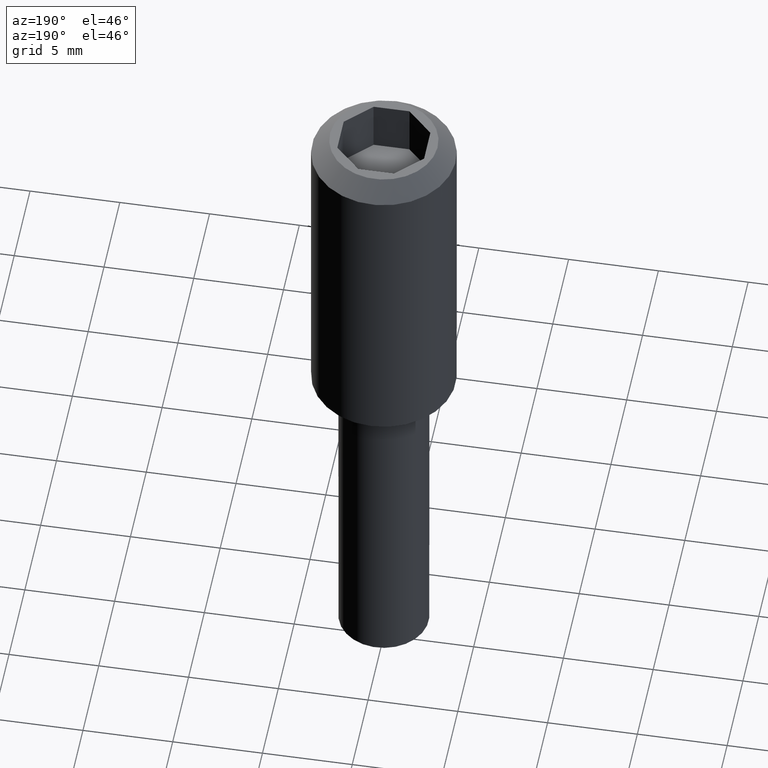
[diagram: clean part render]
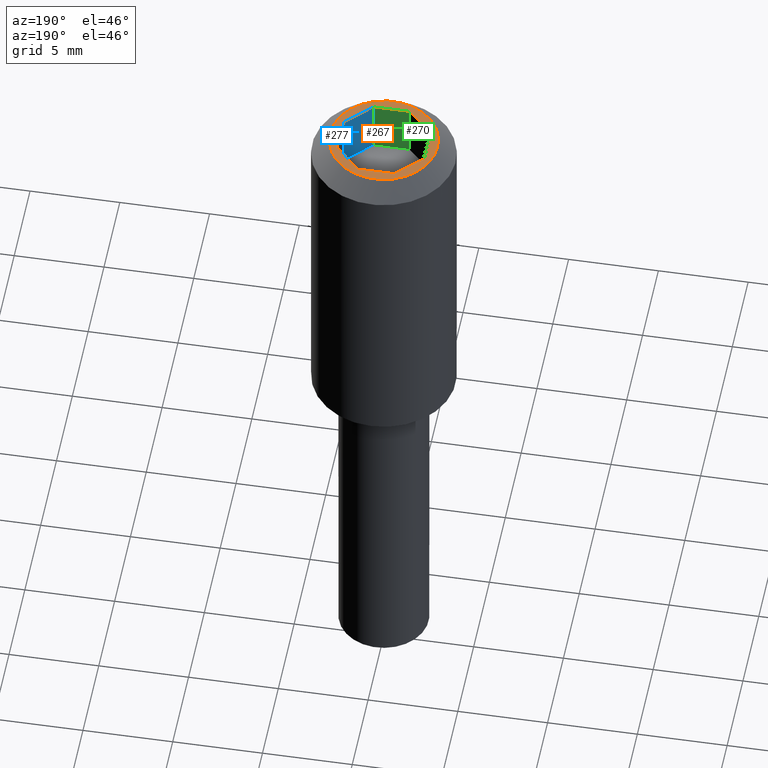
[diagram: same view with three faces highlighted in distinct colors, each labeled with its STEP entity id]
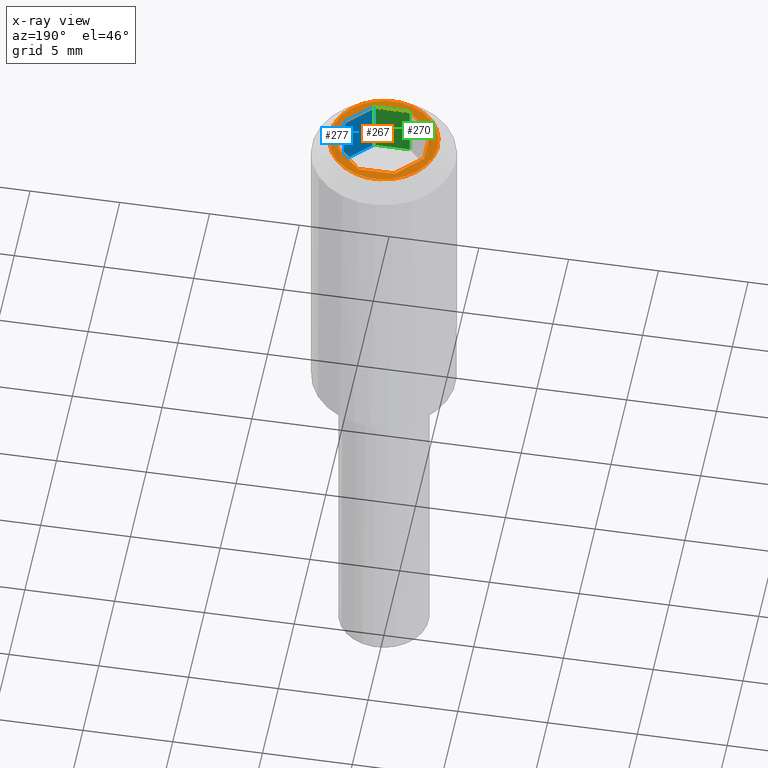
[diagram: x-ray of the same camera — body ghosted, the three highlighted faces saturated]
A machine part, auxiliary view with three faces highlighted in distinct colors.
The next image is the same camera in x-ray (body ghosted, the three faces saturated) — at least one of them is partly hidden behind the body in this view.
Their STEP definitions:

[orange] entity #267 — the highlighted planar face has unit normal (0, 0, 1).
#15=FACE_BOUND('',#52,.T.);
#17=PLANE('',#314);
#35=FACE_OUTER_BOUND('',#51,.T.);
#51=EDGE_LOOP('',(#209));
#52=EDGE_LOOP('',(#210,#211,#212,#213,#214,#215,#216,#217));
#69=LINE('',#432,#97);
#70=LINE('',#434,#98);
#71=LINE('',#436,#99);
#72=LINE('',#438,#100);
#73=LINE('',#440,#101);
#74=LINE('',#442,#102);
#75=LINE('',#444,#103);
#76=LINE('',#445,#104);
#97=VECTOR('',#358,2.);
#98=VECTOR('',#359,2.);
#99=VECTOR('',#360,2.00000000000001);
#100=VECTOR('',#361,2.);
#101=VECTOR('',#362,2.00000000000001);
#102=VECTOR('',#363,2.);
#103=VECTOR('',#364,2.00000000000001);
#104=VECTOR('',#365,2.);
#124=CIRCLE('',#307,3.);
#132=VERTEX_POINT('',#414);
#137=VERTEX_POINT('',#430);
#138=VERTEX_POINT('',#431);
#139=VERTEX_POINT('',#433);
#140=VERTEX_POINT('',#435);
#141=VERTEX_POINT('',#437);
#142=VERTEX_POINT('',#439);
#143=VERTEX_POINT('',#441);
#144=VERTEX_POINT('',#443);
#157=EDGE_CURVE('',#132,#132,#124,.T.);
#165=EDGE_CURVE('',#137,#138,#69,.T.);
#166=EDGE_CURVE('',#138,#139,#70,.T.);
#167=EDGE_CURVE('',#139,#140,#71,.T.);
#168=EDGE_CURVE('',#140,#141,#72,.T.);
#169=EDGE_CURVE('',#141,#142,#73,.T.);
#170=EDGE_CURVE('',#142,#143,#74,.T.);
#171=EDGE_CURVE('',#143,#144,#75,.T.);
#172=EDGE_CURVE('',#144,#137,#76,.T.);
#209=ORIENTED_EDGE('',*,*,#157,.T.);
#210=ORIENTED_EDGE('',*,*,#165,.T.);
#211=ORIENTED_EDGE('',*,*,#166,.T.);
#212=ORIENTED_EDGE('',*,*,#167,.T.);
#213=ORIENTED_EDGE('',*,*,#168,.T.);
#214=ORIENTED_EDGE('',*,*,#169,.T.);
#215=ORIENTED_EDGE('',*,*,#170,.T.);
#216=ORIENTED_EDGE('',*,*,#171,.T.);
#217=ORIENTED_EDGE('',*,*,#172,.T.);
#267=ADVANCED_FACE('',(#35,#15),#17,.T.);
#307=AXIS2_PLACEMENT_3D('',#415,#339,#340);
#314=AXIS2_PLACEMENT_3D('',#429,#356,#357);
#339=DIRECTION('center_axis',(0.,0.,1.));
#340=DIRECTION('ref_axis',(-1.,0.,0.));
#356=DIRECTION('center_axis',(0.,0.,1.));
#357=DIRECTION('ref_axis',(1.,0.,0.));
#358=DIRECTION('',(-0.707106781186548,-0.707106781186547,0.));
#359=DIRECTION('',(-1.,0.,0.));
#360=DIRECTION('',(-0.707106781186547,0.707106781186548,0.));
#361=DIRECTION('',(0.,1.,0.));
#362=DIRECTION('',(0.707106781186548,0.707106781186547,0.));
#363=DIRECTION('',(1.,0.,0.));
#364=DIRECTION('',(0.707106781186547,-0.707106781186548,0.));
#365=DIRECTION('',(0.,-1.,0.));
#414=CARTESIAN_POINT('',(-1.74332574334476,-2.44147810815323,18.5));
#415=CARTESIAN_POINT('Origin',(0.,2.265597E-15,18.5));
#429=CARTESIAN_POINT('Origin',(3.3,3.30000000000001,18.5));
#430=CARTESIAN_POINT('',(2.41421356237311,-0.999999999999998,18.5));
#431=CARTESIAN_POINT('',(1.,-2.41421356237308,18.5));
#432=CARTESIAN_POINT('',(2.4142135623731,-0.99999999999999,18.5));
#433=CARTESIAN_POINT('',(-1.,-2.41421356237309,18.5));
#434=CARTESIAN_POINT('',(1.,-2.41421356237309,18.5));
#435=CARTESIAN_POINT('',(-2.41421356237311,-0.999999999999998,18.5));
#436=CARTESIAN_POINT('',(-1.,-2.41421356237309,18.5));
#437=CARTESIAN_POINT('',(-2.41421356237311,1.,18.5));
#438=CARTESIAN_POINT('',(-2.41421356237311,-0.999999999999998,18.5));
#439=CARTESIAN_POINT('',(-1.,2.4142135623731,18.5));
#440=CARTESIAN_POINT('',(-2.4142135623731,0.999999999999994,18.5));
#441=CARTESIAN_POINT('',(1.,2.4142135623731,18.5));
#442=CARTESIAN_POINT('',(-1.,2.4142135623731,18.5));
#443=CARTESIAN_POINT('',(2.41421356237311,1.,18.5));
#444=CARTESIAN_POINT('',(1.00000000000001,2.4142135623731,18.5));
#445=CARTESIAN_POINT('',(2.41421356237311,1.,18.5));

[blue] entity #277 — the highlighted planar face has unit normal (-0.7071, 0.7071, -0).
#27=PLANE('',#324);
#45=FACE_OUTER_BOUND('',#63,.T.);
#63=EDGE_LOOP('',(#249,#250,#251,#252));
#69=LINE('',#432,#97);
#77=LINE('',#450,#105);
#91=LINE('',#477,#119);
#92=LINE('',#479,#120);
#97=VECTOR('',#358,2.);
#105=VECTOR('',#372,3.);
#119=VECTOR('',#398,3.);
#120=VECTOR('',#401,2.00000000000001);
#137=VERTEX_POINT('',#430);
#138=VERTEX_POINT('',#431);
#145=VERTEX_POINT('',#449);
#152=VERTEX_POINT('',#475);
#165=EDGE_CURVE('',#137,#138,#69,.T.);
#173=EDGE_CURVE('',#145,#138,#77,.T.);
#187=EDGE_CURVE('',#152,#137,#91,.T.);
#188=EDGE_CURVE('',#152,#145,#92,.T.);
#249=ORIENTED_EDGE('',*,*,#165,.F.);
#250=ORIENTED_EDGE('',*,*,#187,.F.);
#251=ORIENTED_EDGE('',*,*,#188,.T.);
#252=ORIENTED_EDGE('',*,*,#173,.T.);
#277=ADVANCED_FACE('',(#45),#27,.T.);
#324=AXIS2_PLACEMENT_3D('',#478,#399,#400);
#358=DIRECTION('',(-0.707106781186548,-0.707106781186547,0.));
#372=DIRECTION('',(0.,0.,1.));
#398=DIRECTION('',(0.,0.,1.));
#399=DIRECTION('center_axis',(-0.707106781186548,0.707106781186547,-8.659561E-17));
#400=DIRECTION('ref_axis',(-1.22464686103971E-16,0.,1.));
#401=DIRECTION('',(-0.707106781186547,-0.707106781186548,0.));
#430=CARTESIAN_POINT('',(2.41421356237311,-0.999999999999998,18.5));
#431=CARTESIAN_POINT('',(1.,-2.41421356237308,18.5));
#432=CARTESIAN_POINT('',(2.4142135623731,-0.99999999999999,18.5));
#449=CARTESIAN_POINT('',(1.,-2.41421356237309,15.5));
#450=CARTESIAN_POINT('',(1.,-2.41421356237309,15.5));
#475=CARTESIAN_POINT('',(2.41421356237311,-0.999999999999998,15.5));
#477=CARTESIAN_POINT('',(2.41421356237311,-0.999999999999998,15.5));
#478=CARTESIAN_POINT('Origin',(0.929289321881349,-2.48492424049175,18.65));
#479=CARTESIAN_POINT('',(2.4142135623731,-0.99999999999999,15.5));

[green] entity #270 — the highlighted planar face has unit normal (0, 1, 0).
#20=PLANE('',#317);
#38=FACE_OUTER_BOUND('',#56,.T.);
#56=EDGE_LOOP('',(#221,#222,#223,#224));
#70=LINE('',#434,#98);
#77=LINE('',#450,#105);
#78=LINE('',#452,#106);
#79=LINE('',#453,#107);
#98=VECTOR('',#359,2.);
#105=VECTOR('',#372,3.);
#106=VECTOR('',#373,2.);
#107=VECTOR('',#374,3.);
#138=VERTEX_POINT('',#431);
#139=VERTEX_POINT('',#433);
#145=VERTEX_POINT('',#449);
#146=VERTEX_POINT('',#451);
#166=EDGE_CURVE('',#138,#139,#70,.T.);
#173=EDGE_CURVE('',#145,#138,#77,.T.);
#174=EDGE_CURVE('',#145,#146,#78,.T.);
#175=EDGE_CURVE('',#146,#139,#79,.T.);
#221=ORIENTED_EDGE('',*,*,#166,.F.);
#222=ORIENTED_EDGE('',*,*,#173,.F.);
#223=ORIENTED_EDGE('',*,*,#174,.T.);
#224=ORIENTED_EDGE('',*,*,#175,.T.);
#270=ADVANCED_FACE('',(#38),#20,.T.);
#317=AXIS2_PLACEMENT_3D('',#448,#370,#371);
#359=DIRECTION('',(-1.,0.,0.));
#370=DIRECTION('center_axis',(0.,1.,0.));
#371=DIRECTION('ref_axis',(0.,0.,1.));
#372=DIRECTION('',(0.,0.,1.));
#373=DIRECTION('',(-1.,0.,0.));
#374=DIRECTION('',(0.,0.,1.));
#431=CARTESIAN_POINT('',(1.,-2.41421356237308,18.5));
#433=CARTESIAN_POINT('',(-1.,-2.41421356237309,18.5));
#434=CARTESIAN_POINT('',(1.,-2.41421356237309,18.5));
#448=CARTESIAN_POINT('Origin',(-1.1,-2.41421356237309,15.35));
#449=CARTESIAN_POINT('',(1.,-2.41421356237309,15.5));
#450=CARTESIAN_POINT('',(1.,-2.41421356237309,15.5));
#451=CARTESIAN_POINT('',(-1.,-2.41421356237309,15.5));
#452=CARTESIAN_POINT('',(1.,-2.41421356237309,15.5));
#453=CARTESIAN_POINT('',(-1.,-2.41421356237309,15.5));